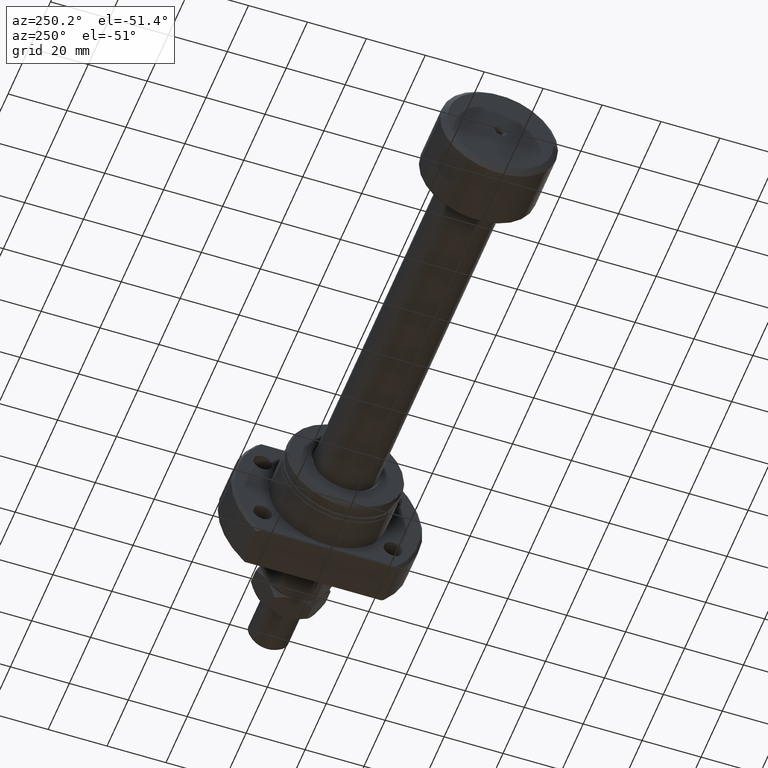
[diagram: clean part render]
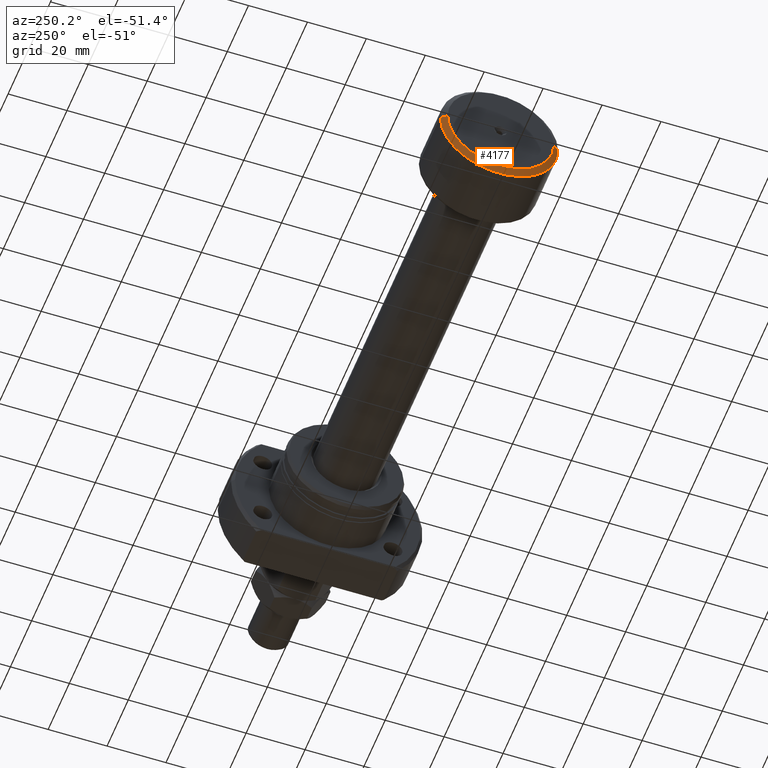
[diagram: same view with one face highlighted and labeled with its STEP entity id]
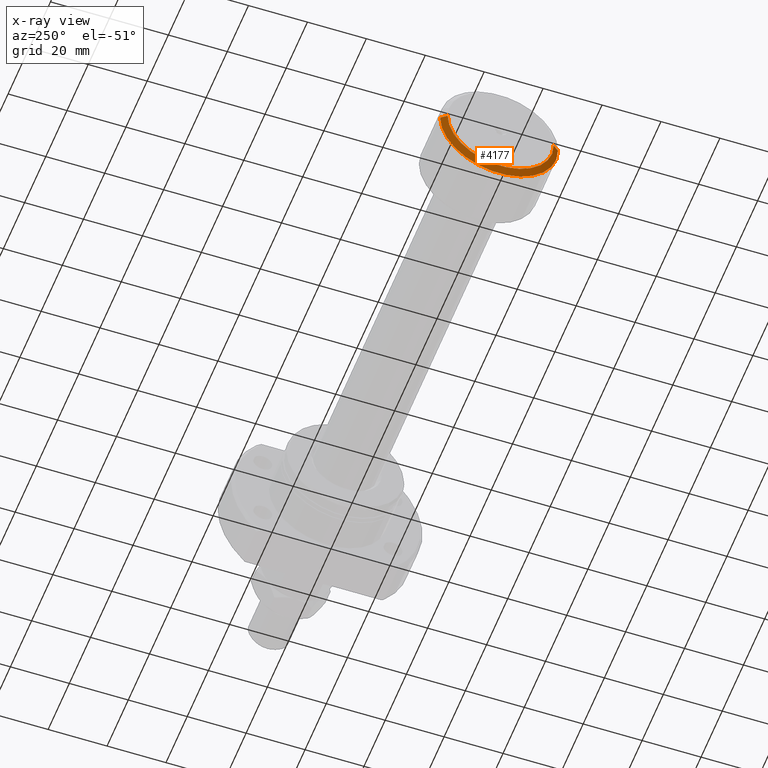
[diagram: x-ray of the same camera — body ghosted, the highlighted face saturated]
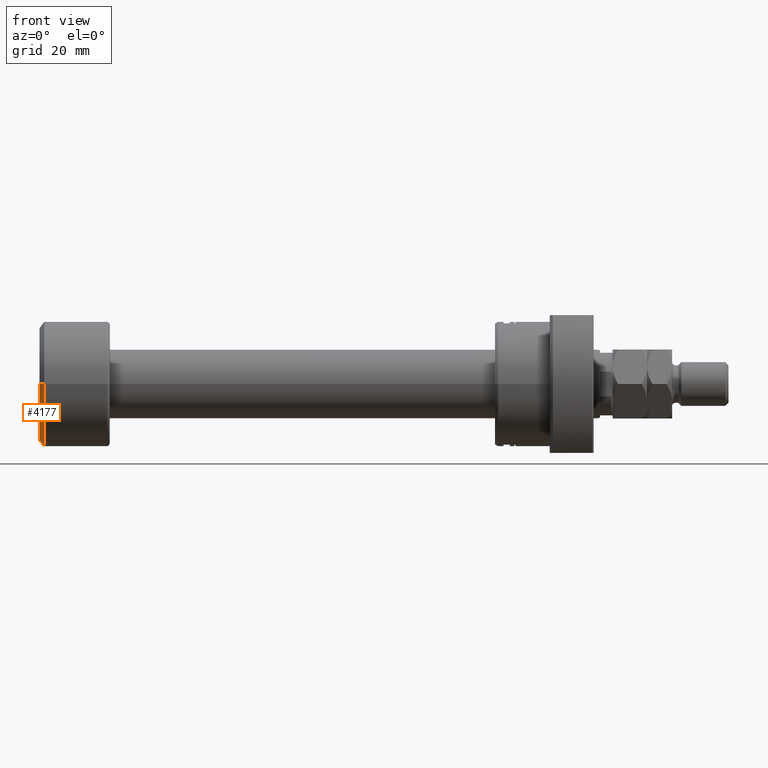
[diagram: same view with one face highlighted and labeled with its STEP entity id]
A machine part, auxiliary view. The second image highlights one B-rep face of the part: STEP entity #4177.
The next image is the same camera in x-ray: the body ghosted, the highlighted face saturated — about 0% of this face is hidden behind the body in this view.
A second angle (front view) of the same face is appended — the face is thin or edge-on in the first view.
In plain terms, the highlighted conical surface has half-angle 53.13 deg.
Its self-contained STEP definition (entity closure, byte-faithful):
#89 = CARTESIAN_POINT ( 'NONE',  ( 1.819329002520372041E-15, 18.00000000000000355, 0.000000000000000000 ) ) ;
#233 = ORIENTED_EDGE ( 'NONE', *, *, #4164, .F. ) ;
#441 = VERTEX_POINT ( 'NONE', #1342 ) ;
#738 = EDGE_CURVE ( 'NONE', #1776, #1835, #2301, .T. ) ;
#835 = VERTEX_POINT ( 'NONE', #4702 ) ;
#1052 = DIRECTION ( 'NONE',  ( 1.069542322069065647E-17, -1.000000000000000000, 0.000000000000000000 ) ) ;
#1147 = DIRECTION ( 'NONE',  ( 1.000000000000000000, 1.069542322069065801E-17, 0.000000000000000000 ) ) ;
#1191 = AXIS2_PLACEMENT_3D ( 'NONE', #1591, #4104, #3796 ) ;
#1342 = CARTESIAN_POINT ( 'NONE',  ( 2.204364238465235822E-15, -18.00000000000000355, 2.326828918379971365E-15 ) ) ;
#1354 = EDGE_LOOP ( 'NONE', ( #233, #3353, #4787, #1960 ) ) ;
#1581 = DIRECTION ( 'NONE',  ( 0.6000000000000005329, 0.7999999999999996003, 0.000000000000000000 ) ) ;
#1591 = CARTESIAN_POINT ( 'NONE',  ( 1.500000000000002442, 1.604313483103601552E-17, 0.000000000000000000 ) ) ;
#1776 = VERTEX_POINT ( 'NONE', #4583 ) ;
#1812 = CONICAL_SURFACE ( 'NONE', #2427, 18.00000000000000355, 0.9272952180016115209 ) ;
#1835 = VERTEX_POINT ( 'NONE', #2035 ) ;
#1960 = ORIENTED_EDGE ( 'NONE', *, *, #3731, .T. ) ;
#2035 = CARTESIAN_POINT ( 'NONE',  ( 1.500000000000002442, 20.00000000000000000, 0.000000000000000000 ) ) ;
#2301 = LINE ( 'NONE', #89, #4795 ) ;
#2427 = AXIS2_PLACEMENT_3D ( 'NONE', #3815, #1147, #3370 ) ;
#2505 = AXIS2_PLACEMENT_3D ( 'NONE', #4713, #4782, #1052 ) ;
#2701 = FACE_OUTER_BOUND ( 'NONE', #1354, .T. ) ;
#2937 = CARTESIAN_POINT ( 'NONE',  ( 2.204364238465235822E-15, -18.00000000000000355, 2.204364238465235822E-15 ) ) ;
#3198 = CIRCLE ( 'NONE', #2505, 18.00000000000000355 ) ;
#3353 = ORIENTED_EDGE ( 'NONE', *, *, #4138, .F. ) ;
#3370 = DIRECTION ( 'NONE',  ( -1.069542322069065647E-17, 1.000000000000000000, 0.000000000000000000 ) ) ;
#3731 = EDGE_CURVE ( 'NONE', #1835, #835, #3823, .T. ) ;
#3796 = DIRECTION ( 'NONE',  ( 1.084202172485504434E-17, -1.000000000000000000, 0.000000000000000000 ) ) ;
#3815 = CARTESIAN_POINT ( 'NONE',  ( 2.011846620492804129E-15, 2.151755106128676308E-32, 0.000000000000000000 ) ) ;
#3823 = CIRCLE ( 'NONE', #1191, 20.00000000000000000 ) ;
#4025 = LINE ( 'NONE', #2937, #4753 ) ;
#4104 = DIRECTION ( 'NONE',  ( -1.000000000000000000, -1.069542322069065801E-17, -0.000000000000000000 ) ) ;
#4138 = EDGE_CURVE ( 'NONE', #1776, #441, #3198, .T. ) ;
#4164 = EDGE_CURVE ( 'NONE', #441, #835, #4025, .T. ) ;
#4177 = ADVANCED_FACE ( 'NONE', ( #2701 ), #1812, .T. ) ;
#4583 = CARTESIAN_POINT ( 'NONE',  ( 1.819329002520372041E-15, 18.00000000000000355, 0.000000000000000000 ) ) ;
#4702 = CARTESIAN_POINT ( 'NONE',  ( 1.500000000000002887, -20.00000000000000000, 2.449293598294706513E-15 ) ) ;
#4713 = CARTESIAN_POINT ( 'NONE',  ( 2.011846620492804129E-15, 2.151755106128676308E-32, 0.000000000000000000 ) ) ;
#4739 = DIRECTION ( 'NONE',  ( 0.6000000000000005329, -0.7999999999999996003, 9.797174393178821220E-17 ) ) ;
#4753 = VECTOR ( 'NONE', #4739, 1000.000000000000000 ) ;
#4782 = DIRECTION ( 'NONE',  ( -1.000000000000000000, -1.069542322069065801E-17, -0.000000000000000000 ) ) ;
#4787 = ORIENTED_EDGE ( 'NONE', *, *, #738, .T. ) ;
#4795 = VECTOR ( 'NONE', #1581, 1000.000000000000000 ) ;